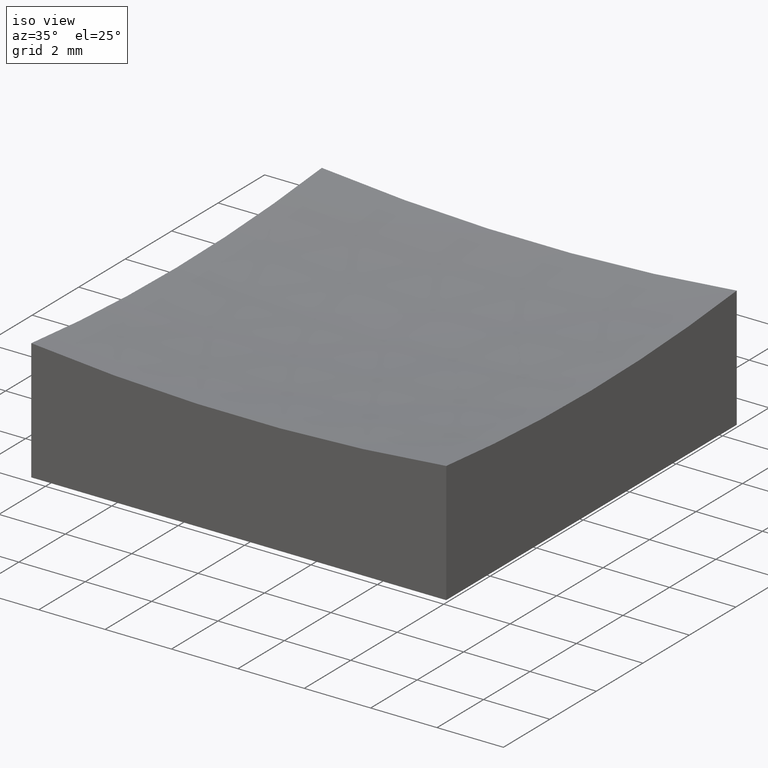
[diagram: clean part render]
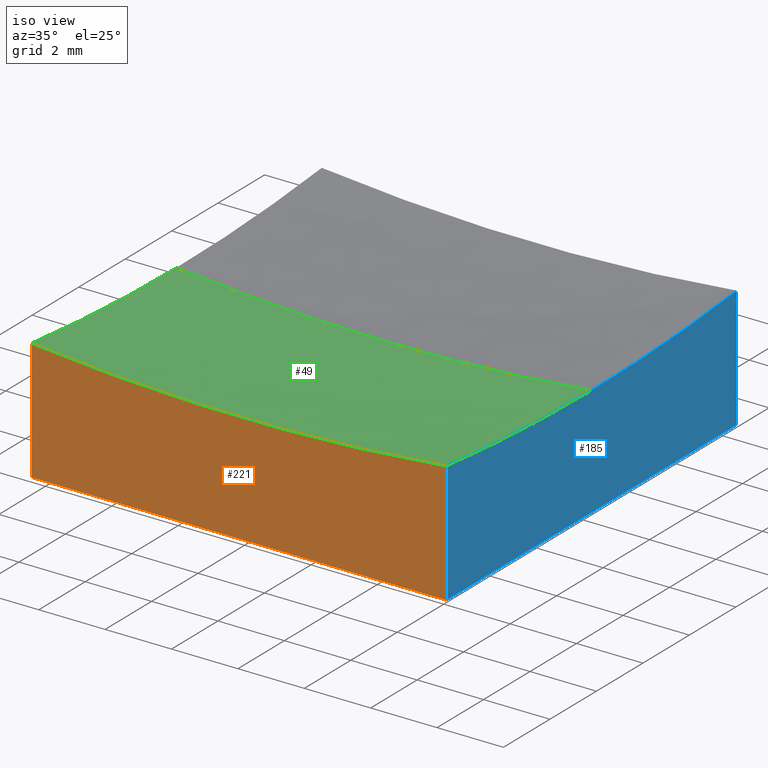
[diagram: same view with three faces highlighted in distinct colors, each labeled with its STEP entity id]
A machine part, iso view with three faces highlighted in distinct colors.
Their STEP definitions:

[orange] entity #221 — the highlighted planar face has unit normal (0, 1, 0).
#2 = EDGE_LOOP ( 'NONE', ( #160, #250, #238, #101 ) ) ;
#5 = AXIS2_PLACEMENT_3D ( 'NONE', #159, #236, #40 ) ;
#12 = DIRECTION ( 'NONE',  ( 1.000000000000000000, 0.0000000000000000000, 0.0000000000000000000 ) ) ;
#15 = VECTOR ( 'NONE', #12, 1000.000000000000000 ) ;
#16 = EDGE_CURVE ( 'NONE', #191, #42, #246, .T. ) ;
#40 = DIRECTION ( 'NONE',  ( 0.0000000000000000000, 0.0000000000000000000, 1.000000000000000000 ) ) ;
#42 = VERTEX_POINT ( 'NONE', #99 ) ;
#43 = VECTOR ( 'NONE', #142, 1000.000000000000000 ) ;
#52 = CARTESIAN_POINT ( 'NONE',  ( -6.250000000000000000, -6.250000000000000888, 0.0000000000000000000 ) ) ;
#55 = CARTESIAN_POINT ( 'NONE',  ( 6.250000000000000000, -6.250000000000000888, 3.654612647653911139 ) ) ;
#72 = LINE ( 'NONE', #140, #15 ) ;
#74 = DIRECTION ( 'NONE',  ( 0.0000000000000000000, -0.0000000000000000000, 1.000000000000000000 ) ) ;
#79 = VERTEX_POINT ( 'NONE', #90 ) ;
#83 = VERTEX_POINT ( 'NONE', #52 ) ;
#90 = CARTESIAN_POINT ( 'NONE',  ( 6.250000000000000000, -6.250000000000000888, 0.0000000000000000000 ) ) ;
#92 = FACE_OUTER_BOUND ( 'NONE', #2, .T. ) ;
#99 = CARTESIAN_POINT ( 'NONE',  ( -6.250000000000000000, -6.250000000000000888, 3.654612647653911139 ) ) ;
#101 = ORIENTED_EDGE ( 'NONE', *, *, #110, .T. ) ;
#102 = EDGE_CURVE ( 'NONE', #42, #83, #124, .T. ) ;
#104 = LINE ( 'NONE', #166, #43 ) ;
#106 = DIRECTION ( 'NONE',  ( 0.0000000000000000000, 1.000000000000000000, 0.0000000000000000000 ) ) ;
#110 = EDGE_CURVE ( 'NONE', #83, #79, #72, .T. ) ;
#124 = LINE ( 'NONE', #247, #235 ) ;
#132 = EDGE_CURVE ( 'NONE', #191, #79, #104, .T. ) ;
#140 = CARTESIAN_POINT ( 'NONE',  ( -6.250000000000000000, -6.250000000000000888, 0.0000000000000000000 ) ) ;
#142 = DIRECTION ( 'NONE',  ( -0.0000000000000000000, -0.0000000000000000000, -1.000000000000000000 ) ) ;
#159 = CARTESIAN_POINT ( 'NONE',  ( 7.715274834628325378E-15, -6.250000000000000888, 63.00000000000000000 ) ) ;
#160 = ORIENTED_EDGE ( 'NONE', *, *, #132, .F. ) ;
#166 = CARTESIAN_POINT ( 'NONE',  ( 6.250000000000000000, -6.250000000000000888, 10.00000000000000000 ) ) ;
#170 = PLANE ( 'NONE',  #190 ) ;
#186 = DIRECTION ( 'NONE',  ( -0.0000000000000000000, -0.0000000000000000000, -1.000000000000000000 ) ) ;
#190 = AXIS2_PLACEMENT_3D ( 'NONE', #210, #106, #74 ) ;
#191 = VERTEX_POINT ( 'NONE', #55 ) ;
#210 = CARTESIAN_POINT ( 'NONE',  ( -6.250000000000000000, -6.250000000000000888, 10.00000000000000000 ) ) ;
#221 = ADVANCED_FACE ( 'NONE', ( #92 ), #170, .F. ) ;
#235 = VECTOR ( 'NONE', #186, 1000.000000000000000 ) ;
#236 = DIRECTION ( 'NONE',  ( 0.0000000000000000000, 1.000000000000000000, 0.0000000000000000000 ) ) ;
#238 = ORIENTED_EDGE ( 'NONE', *, *, #102, .T. ) ;
#246 = CIRCLE ( 'NONE', #5, 59.67359131140004536 ) ;
#247 = CARTESIAN_POINT ( 'NONE',  ( -6.250000000000000000, -6.250000000000000888, 10.00000000000000000 ) ) ;
#250 = ORIENTED_EDGE ( 'NONE', *, *, #16, .T. ) ;

[blue] entity #185 — the highlighted planar face has unit normal (1, 0, -0).
#11 = CARTESIAN_POINT ( 'NONE',  ( 6.250000000000000000, 6.250000000000000888, 0.0000000000000000000 ) ) ;
#13 = CARTESIAN_POINT ( 'NONE',  ( 6.250000000000000000, 6.250000000000000888, 3.654612647653911139 ) ) ;
#19 = LINE ( 'NONE', #233, #109 ) ;
#22 = EDGE_CURVE ( 'NONE', #191, #80, #25, .T. ) ;
#25 = CIRCLE ( 'NONE', #130, 59.67359131140005246 ) ;
#33 = DIRECTION ( 'NONE',  ( 1.000000000000000000, 0.0000000000000000000, -0.0000000000000000000 ) ) ;
#34 = AXIS2_PLACEMENT_3D ( 'NONE', #193, #194, #114 ) ;
#37 = VECTOR ( 'NONE', #50, 1000.000000000000000 ) ;
#43 = VECTOR ( 'NONE', #142, 1000.000000000000000 ) ;
#47 = CARTESIAN_POINT ( 'NONE',  ( 6.250000000000000000, 0.0000000000000000000, 3.326408688599950647 ) ) ;
#50 = DIRECTION ( 'NONE',  ( 0.0000000000000000000, -1.000000000000000000, 0.0000000000000000000 ) ) ;
#55 = CARTESIAN_POINT ( 'NONE',  ( 6.250000000000000000, -6.250000000000000888, 3.654612647653911139 ) ) ;
#58 = DIRECTION ( 'NONE',  ( 0.0000000000000000000, 0.0000000000000000000, -1.000000000000000000 ) ) ;
#61 = DIRECTION ( 'NONE',  ( 1.000000000000000000, 0.0000000000000000000, -0.0000000000000000000 ) ) ;
#79 = VERTEX_POINT ( 'NONE', #90 ) ;
#80 = VERTEX_POINT ( 'NONE', #47 ) ;
#87 = LINE ( 'NONE', #224, #37 ) ;
#90 = CARTESIAN_POINT ( 'NONE',  ( 6.250000000000000000, -6.250000000000000888, 0.0000000000000000000 ) ) ;
#93 = ORIENTED_EDGE ( 'NONE', *, *, #176, .F. ) ;
#96 = DIRECTION ( 'NONE',  ( -0.0000000000000000000, -0.0000000000000000000, -1.000000000000000000 ) ) ;
#104 = LINE ( 'NONE', #166, #43 ) ;
#108 = VERTEX_POINT ( 'NONE', #11 ) ;
#109 = VECTOR ( 'NONE', #96, 1000.000000000000000 ) ;
#112 = PLANE ( 'NONE',  #34 ) ;
#114 = DIRECTION ( 'NONE',  ( -0.0000000000000000000, 0.0000000000000000000, -1.000000000000000000 ) ) ;
#118 = EDGE_CURVE ( 'NONE', #108, #79, #87, .T. ) ;
#122 = CARTESIAN_POINT ( 'NONE',  ( 6.250000000000000000, 0.0000000000000000000, 63.00000000000000000 ) ) ;
#128 = AXIS2_PLACEMENT_3D ( 'NONE', #122, #33, #183 ) ;
#129 = FACE_OUTER_BOUND ( 'NONE', #214, .T. ) ;
#130 = AXIS2_PLACEMENT_3D ( 'NONE', #199, #61, #58 ) ;
#132 = EDGE_CURVE ( 'NONE', #191, #79, #104, .T. ) ;
#134 = ORIENTED_EDGE ( 'NONE', *, *, #240, .F. ) ;
#142 = DIRECTION ( 'NONE',  ( -0.0000000000000000000, -0.0000000000000000000, -1.000000000000000000 ) ) ;
#153 = CIRCLE ( 'NONE', #128, 59.67359131140005246 ) ;
#156 = ORIENTED_EDGE ( 'NONE', *, *, #118, .F. ) ;
#166 = CARTESIAN_POINT ( 'NONE',  ( 6.250000000000000000, -6.250000000000000888, 10.00000000000000000 ) ) ;
#176 = EDGE_CURVE ( 'NONE', #239, #108, #19, .T. ) ;
#183 = DIRECTION ( 'NONE',  ( 0.0000000000000000000, 0.0000000000000000000, -1.000000000000000000 ) ) ;
#185 = ADVANCED_FACE ( 'NONE', ( #129 ), #112, .T. ) ;
#191 = VERTEX_POINT ( 'NONE', #55 ) ;
#193 = CARTESIAN_POINT ( 'NONE',  ( 6.250000000000000000, 6.250000000000000888, 10.00000000000000000 ) ) ;
#194 = DIRECTION ( 'NONE',  ( 1.000000000000000000, 0.0000000000000000000, -0.0000000000000000000 ) ) ;
#198 = ORIENTED_EDGE ( 'NONE', *, *, #132, .T. ) ;
#199 = CARTESIAN_POINT ( 'NONE',  ( 6.250000000000000000, 0.0000000000000000000, 63.00000000000000000 ) ) ;
#214 = EDGE_LOOP ( 'NONE', ( #237, #198, #156, #93, #134 ) ) ;
#224 = CARTESIAN_POINT ( 'NONE',  ( 6.250000000000000000, 6.250000000000000888, 0.0000000000000000000 ) ) ;
#233 = CARTESIAN_POINT ( 'NONE',  ( 6.250000000000000000, 6.250000000000000888, 10.00000000000000000 ) ) ;
#237 = ORIENTED_EDGE ( 'NONE', *, *, #22, .F. ) ;
#239 = VERTEX_POINT ( 'NONE', #13 ) ;
#240 = EDGE_CURVE ( 'NONE', #80, #239, #153, .T. ) ;

[green] entity #49 — the highlighted spherical surface has radius 60 mm.
#1 = CIRCLE ( 'NONE', #219, 59.67359131140005246 ) ;
#4 = ORIENTED_EDGE ( 'NONE', *, *, #155, .T. ) ;
#5 = AXIS2_PLACEMENT_3D ( 'NONE', #159, #236, #40 ) ;
#9 = DIRECTION ( 'NONE',  ( 1.000000000000000000, 0.0000000000000000000, 0.0000000000000000000 ) ) ;
#16 = EDGE_CURVE ( 'NONE', #191, #42, #246, .T. ) ;
#21 = AXIS2_PLACEMENT_3D ( 'NONE', #71, #120, #139 ) ;
#22 = EDGE_CURVE ( 'NONE', #191, #80, #25, .T. ) ;
#25 = CIRCLE ( 'NONE', #130, 59.67359131140005246 ) ;
#36 = DIRECTION ( 'NONE',  ( -1.000000000000000000, 1.224646799147352961E-16, 0.0000000000000000000 ) ) ;
#40 = DIRECTION ( 'NONE',  ( 0.0000000000000000000, 0.0000000000000000000, 1.000000000000000000 ) ) ;
#41 = ORIENTED_EDGE ( 'NONE', *, *, #16, .F. ) ;
#42 = VERTEX_POINT ( 'NONE', #99 ) ;
#47 = CARTESIAN_POINT ( 'NONE',  ( 6.250000000000000000, 0.0000000000000000000, 3.326408688599950647 ) ) ;
#49 = ADVANCED_FACE ( 'NONE', ( #201 ), #207, .F. ) ;
#51 = CARTESIAN_POINT ( 'NONE',  ( -6.250000000000000000, 7.654042494670961551E-16, 3.326408688599950647 ) ) ;
#55 = CARTESIAN_POINT ( 'NONE',  ( 6.250000000000000000, -6.250000000000000888, 3.654612647653911139 ) ) ;
#58 = DIRECTION ( 'NONE',  ( 0.0000000000000000000, 0.0000000000000000000, -1.000000000000000000 ) ) ;
#61 = DIRECTION ( 'NONE',  ( 1.000000000000000000, 0.0000000000000000000, -0.0000000000000000000 ) ) ;
#68 = CARTESIAN_POINT ( 'NONE',  ( 7.715274834628325378E-15, 0.0000000000000000000, 63.00000000000000000 ) ) ;
#70 = CARTESIAN_POINT ( 'NONE',  ( 6.210401153283149838E-15, 0.0000000000000000000, 3.000000000000002665 ) ) ;
#71 = CARTESIAN_POINT ( 'NONE',  ( 7.715274834628325378E-15, 0.0000000000000000000, 63.00000000000000000 ) ) ;
#78 = CIRCLE ( 'NONE', #21, 60.00000000000000000 ) ;
#80 = VERTEX_POINT ( 'NONE', #47 ) ;
#81 = CIRCLE ( 'NONE', #226, 60.00000000000000000 ) ;
#98 = VERTEX_POINT ( 'NONE', #51 ) ;
#99 = CARTESIAN_POINT ( 'NONE',  ( -6.250000000000000000, -6.250000000000000888, 3.654612647653911139 ) ) ;
#100 = EDGE_LOOP ( 'NONE', ( #179, #4, #131, #41, #203 ) ) ;
#111 = DIRECTION ( 'NONE',  ( 1.224646799147353207E-16, 1.000000000000000000, -1.057036347494339336E-32 ) ) ;
#120 = DIRECTION ( 'NONE',  ( 0.0000000000000000000, -1.000000000000000000, -0.0000000000000000000 ) ) ;
#125 = DIRECTION ( 'NONE',  ( 0.0000000000000000000, 0.0000000000000000000, -1.000000000000000000 ) ) ;
#130 = AXIS2_PLACEMENT_3D ( 'NONE', #199, #61, #58 ) ;
#131 = ORIENTED_EDGE ( 'NONE', *, *, #205, .F. ) ;
#133 = VERTEX_POINT ( 'NONE', #70 ) ;
#139 = DIRECTION ( 'NONE',  ( 0.0000000000000000000, 0.0000000000000000000, -1.000000000000000000 ) ) ;
#145 = DIRECTION ( 'NONE',  ( -0.0000000000000000000, 1.000000000000000000, 0.0000000000000000000 ) ) ;
#155 = EDGE_CURVE ( 'NONE', #133, #98, #81, .T. ) ;
#159 = CARTESIAN_POINT ( 'NONE',  ( 7.715274834628325378E-15, -6.250000000000000888, 63.00000000000000000 ) ) ;
#167 = DIRECTION ( 'NONE',  ( 1.000000000000000000, 0.0000000000000000000, -0.0000000000000000000 ) ) ;
#168 = AXIS2_PLACEMENT_3D ( 'NONE', #68, #145, #9 ) ;
#173 = CARTESIAN_POINT ( 'NONE',  ( 7.715274834628325378E-15, 0.0000000000000000000, 63.00000000000000000 ) ) ;
#179 = ORIENTED_EDGE ( 'NONE', *, *, #249, .F. ) ;
#191 = VERTEX_POINT ( 'NONE', #55 ) ;
#199 = CARTESIAN_POINT ( 'NONE',  ( 6.250000000000000000, 0.0000000000000000000, 63.00000000000000000 ) ) ;
#201 = FACE_OUTER_BOUND ( 'NONE', #100, .T. ) ;
#203 = ORIENTED_EDGE ( 'NONE', *, *, #22, .T. ) ;
#205 = EDGE_CURVE ( 'NONE', #42, #98, #1, .T. ) ;
#207 = SPHERICAL_SURFACE ( 'NONE', #168, 60.00000000000000000 ) ;
#208 = CARTESIAN_POINT ( 'NONE',  ( -6.250000000000000000, 0.0000000000000000000, 63.00000000000000000 ) ) ;
#219 = AXIS2_PLACEMENT_3D ( 'NONE', #208, #167, #125 ) ;
#226 = AXIS2_PLACEMENT_3D ( 'NONE', #173, #111, #36 ) ;
#236 = DIRECTION ( 'NONE',  ( 0.0000000000000000000, 1.000000000000000000, 0.0000000000000000000 ) ) ;
#246 = CIRCLE ( 'NONE', #5, 59.67359131140004536 ) ;
#249 = EDGE_CURVE ( 'NONE', #133, #80, #78, .T. ) ;